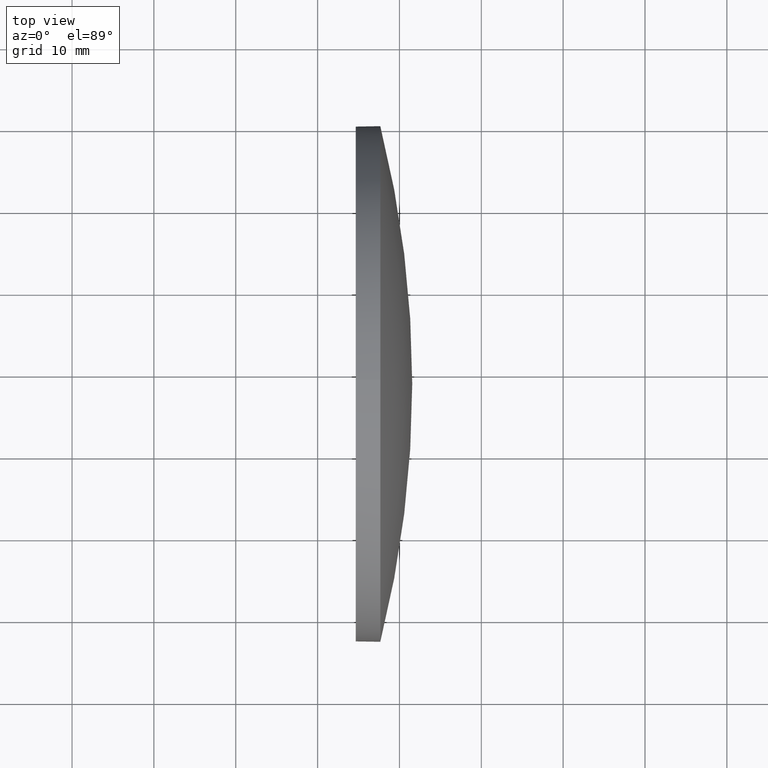
[diagram: clean part render]
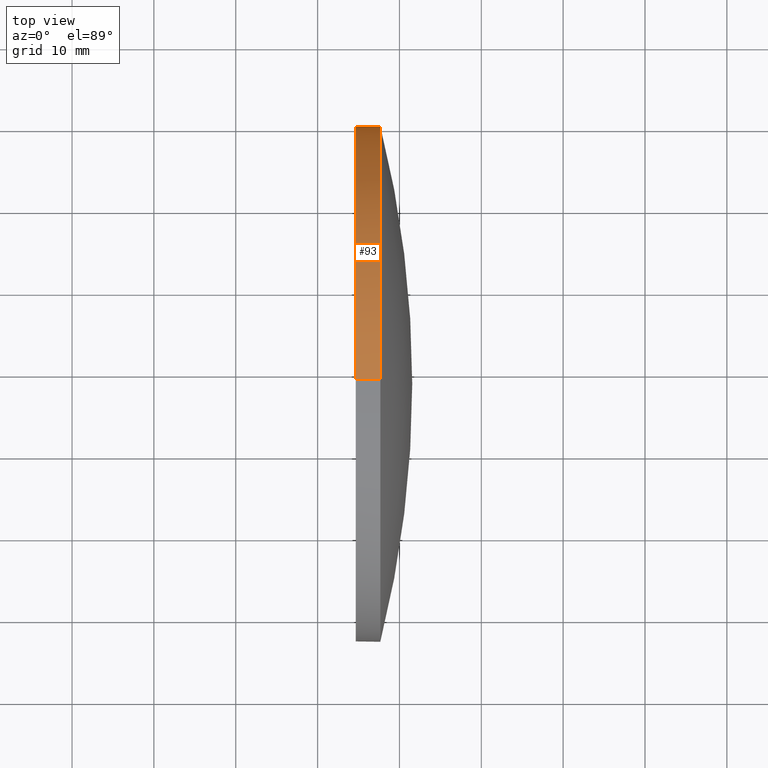
[diagram: same view with one face highlighted and labeled with its STEP entity id]
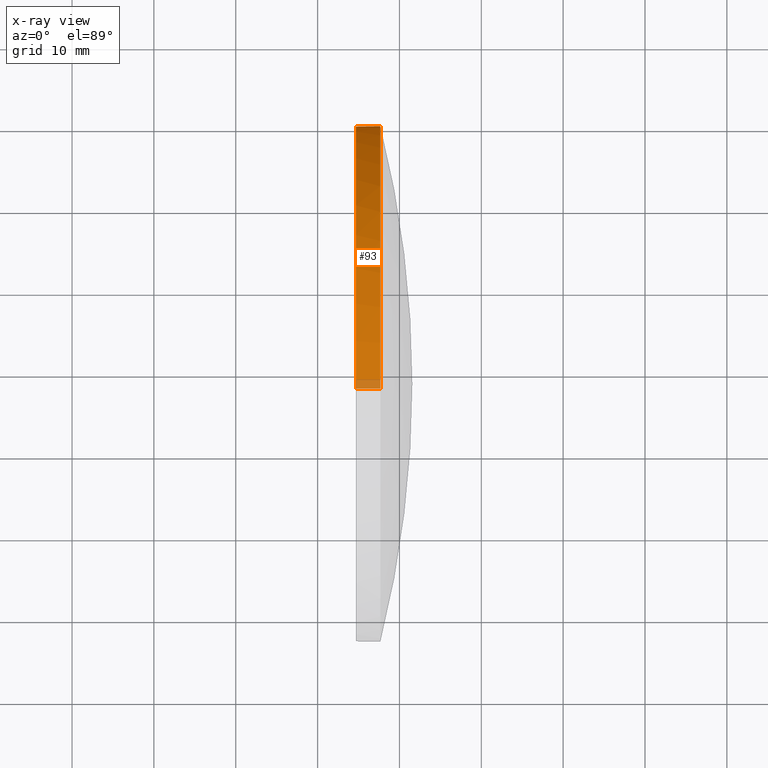
[diagram: x-ray of the same camera — body ghosted, the highlighted face saturated]
A machine part, top view. The second image highlights one B-rep face of the part: STEP entity #93.
The next image is the same camera in x-ray: the body ghosted, the highlighted face saturated — about 3% of this face is hidden behind the body in this view.
In plain terms, the highlighted cylindrical surface (partial cylindrical patch) has radius 31.5 mm, axis along (-1, -0, -0).
Its self-contained STEP definition (entity closure, byte-faithful):
#1 = CYLINDRICAL_SURFACE ( 'NONE', #87, 31.50000000000000700 ) ;
#2 = CARTESIAN_POINT ( 'NONE',  ( 384.6625470284427600, 48.58872453449601600, -31.50000000000000700 ) ) ;
#3 = VERTEX_POINT ( 'NONE', #52 ) ;
#11 = DIRECTION ( 'NONE',  ( 0.0000000000000000000, 0.0000000000000000000, 1.000000000000000000 ) ) ;
#12 = CARTESIAN_POINT ( 'NONE',  ( 384.6625470284427600, 48.58872453449600900, 0.0000000000000000000 ) ) ;
#13 = ORIENTED_EDGE ( 'NONE', *, *, #72, .F. ) ;
#19 = EDGE_CURVE ( 'NONE', #33, #3, #97, .T. ) ;
#21 = VECTOR ( 'NONE', #176, 1000.000000000000000 ) ;
#25 = CARTESIAN_POINT ( 'NONE',  ( 384.6625470284427600, 48.58872453449600900, 31.50000000000000700 ) ) ;
#26 = DIRECTION ( 'NONE',  ( 0.0000000000000000000, 0.0000000000000000000, 1.000000000000000000 ) ) ;
#33 = VERTEX_POINT ( 'NONE', #163 ) ;
#41 = EDGE_CURVE ( 'NONE', #186, #86, #110, .T. ) ;
#44 = CARTESIAN_POINT ( 'NONE',  ( 387.6625470284427600, 48.58872453449600900, 31.50000000000000700 ) ) ;
#46 = LINE ( 'NONE', #57, #81 ) ;
#52 = CARTESIAN_POINT ( 'NONE',  ( 387.6625470284427600, 48.58872453449601600, -31.50000000000000700 ) ) ;
#56 = DIRECTION ( 'NONE',  ( 0.0000000000000000000, 0.0000000000000000000, 1.000000000000000000 ) ) ;
#57 = CARTESIAN_POINT ( 'NONE',  ( 365.6235919666203200, 48.58872453449601600, -31.50000000000000700 ) ) ;
#59 = DIRECTION ( 'NONE',  ( -1.000000000000000000, -0.0000000000000000000, -0.0000000000000000000 ) ) ;
#61 = EDGE_LOOP ( 'NONE', ( #101, #78, #136, #13, #170 ) ) ;
#63 = LINE ( 'NONE', #71, #21 ) ;
#64 = AXIS2_PLACEMENT_3D ( 'NONE', #98, #144, #123 ) ;
#71 = CARTESIAN_POINT ( 'NONE',  ( 365.6235919666203200, 48.58872453449600900, 31.50000000000000700 ) ) ;
#72 = EDGE_CURVE ( 'NONE', #95, #186, #63, .T. ) ;
#78 = ORIENTED_EDGE ( 'NONE', *, *, #148, .T. ) ;
#81 = VECTOR ( 'NONE', #177, 1000.000000000000000 ) ;
#83 = AXIS2_PLACEMENT_3D ( 'NONE', #12, #162, #11 ) ;
#86 = VERTEX_POINT ( 'NONE', #2 ) ;
#87 = AXIS2_PLACEMENT_3D ( 'NONE', #128, #59, #56 ) ;
#93 = ADVANCED_FACE ( 'NONE', ( #141 ), #1, .T. ) ;
#95 = VERTEX_POINT ( 'NONE', #44 ) ;
#97 = CIRCLE ( 'NONE', #64, 31.50000000000000700 ) ;
#98 = CARTESIAN_POINT ( 'NONE',  ( 387.6625470284427600, 48.58872453449600900, 0.0000000000000000000 ) ) ;
#101 = ORIENTED_EDGE ( 'NONE', *, *, #19, .T. ) ;
#110 = CIRCLE ( 'NONE', #83, 31.50000000000000700 ) ;
#113 = CARTESIAN_POINT ( 'NONE',  ( 387.6625470284427600, 48.58872453449600900, 0.0000000000000000000 ) ) ;
#122 = CIRCLE ( 'NONE', #179, 31.50000000000000700 ) ;
#123 = DIRECTION ( 'NONE',  ( 0.0000000000000000000, 0.0000000000000000000, 1.000000000000000000 ) ) ;
#128 = CARTESIAN_POINT ( 'NONE',  ( 365.6235919666203200, 48.58872453449600900, 0.0000000000000000000 ) ) ;
#129 = DIRECTION ( 'NONE',  ( -1.000000000000000000, -0.0000000000000000000, -0.0000000000000000000 ) ) ;
#136 = ORIENTED_EDGE ( 'NONE', *, *, #41, .F. ) ;
#137 = EDGE_CURVE ( 'NONE', #95, #33, #122, .T. ) ;
#141 = FACE_OUTER_BOUND ( 'NONE', #61, .T. ) ;
#144 = DIRECTION ( 'NONE',  ( -1.000000000000000000, -0.0000000000000000000, -0.0000000000000000000 ) ) ;
#148 = EDGE_CURVE ( 'NONE', #3, #86, #46, .T. ) ;
#162 = DIRECTION ( 'NONE',  ( -1.000000000000000000, -0.0000000000000000000, -0.0000000000000000000 ) ) ;
#163 = CARTESIAN_POINT ( 'NONE',  ( 387.6625470284427600, 80.08872453449592400, 0.0000000000000000000 ) ) ;
#170 = ORIENTED_EDGE ( 'NONE', *, *, #137, .T. ) ;
#176 = DIRECTION ( 'NONE',  ( -1.000000000000000000, -0.0000000000000000000, -0.0000000000000000000 ) ) ;
#177 = DIRECTION ( 'NONE',  ( -1.000000000000000000, -0.0000000000000000000, -0.0000000000000000000 ) ) ;
#179 = AXIS2_PLACEMENT_3D ( 'NONE', #113, #129, #26 ) ;
#186 = VERTEX_POINT ( 'NONE', #25 ) ;